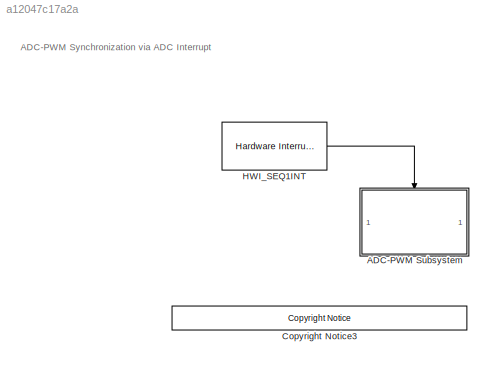
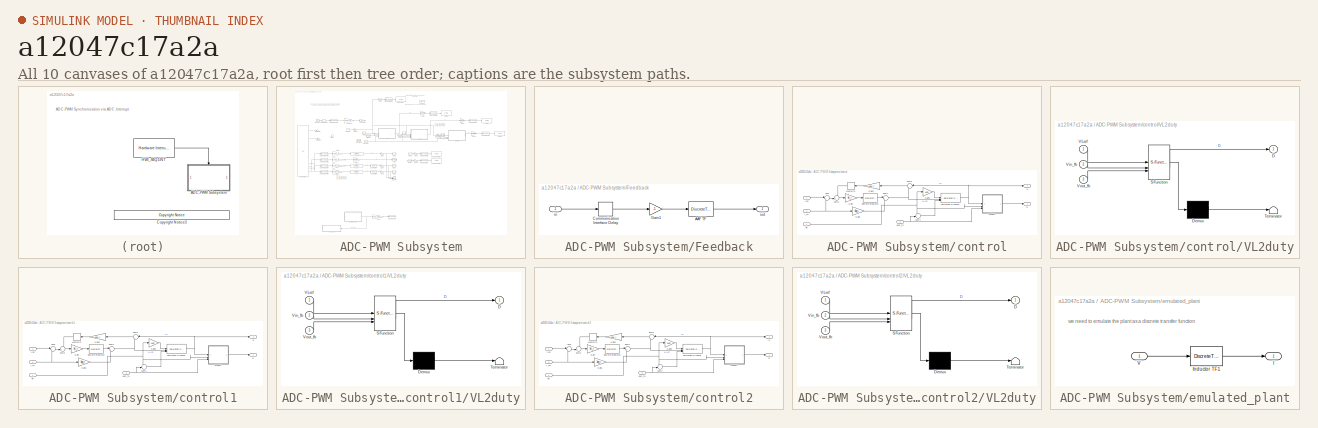
[diagram: thumbnail index - all 10 canvases of the model, root first then tree order]
MODEL slx_a12047c17a2a
KIND model
CONFIG AbsTol = auto
CONFIG EnableMultiTasking = on
CONFIG FixedStep = Tsw
CONFIG MaxStep = auto
CONFIG MinStep = auto
CONFIG RelTol = 1e-3
CONFIG SampleTimeConstraint = Unconstrained
CONFIG SolverName = FixedStepDiscrete
CONFIG StartTime = 0.0
CONFIG StopTime = inf
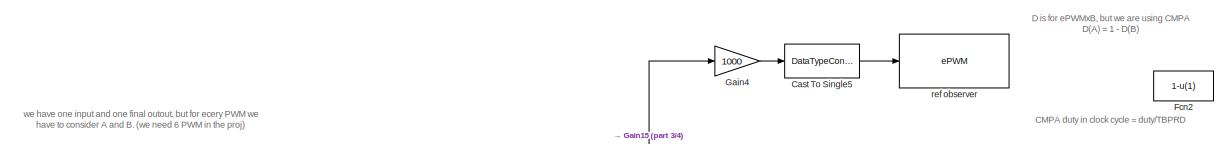
[diagram: ADC-PWM Subsystem - part 1/4, top center region]
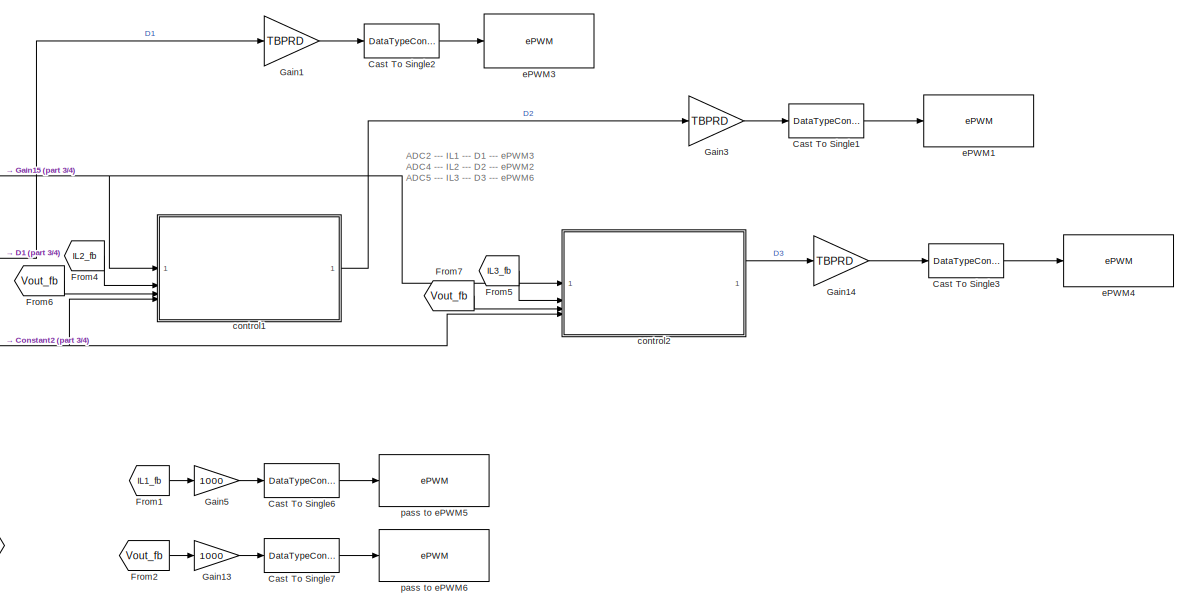
[diagram: ADC-PWM Subsystem - part 2/4, top right region]
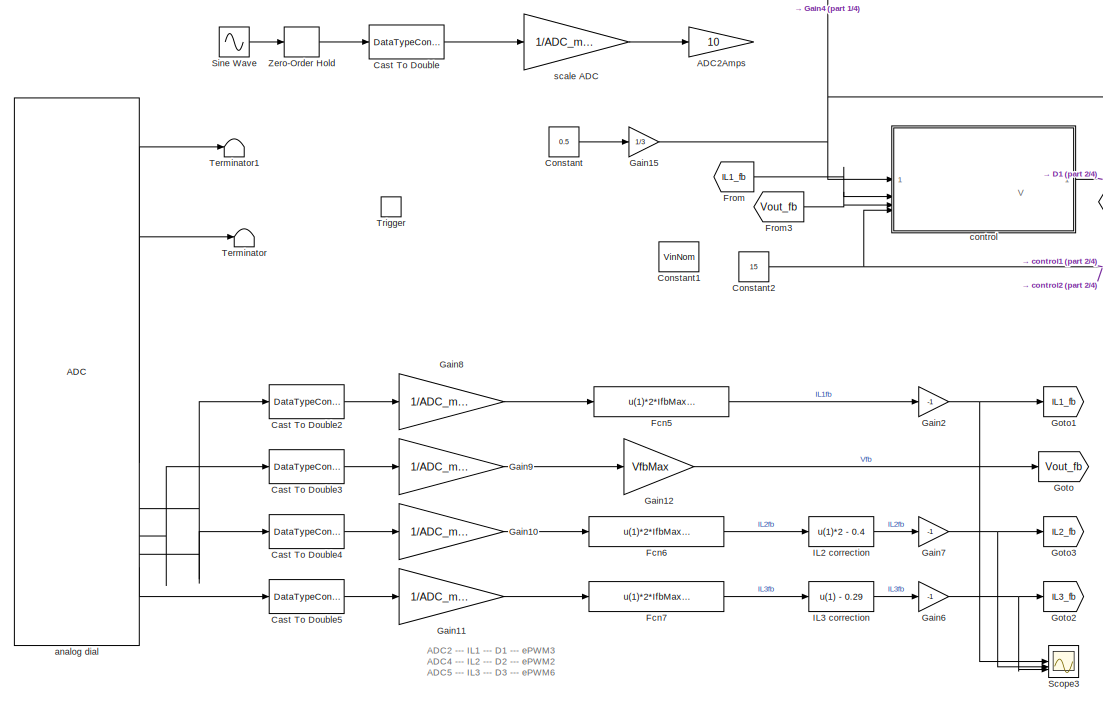
[diagram: ADC-PWM Subsystem - part 3/4, middle left region]
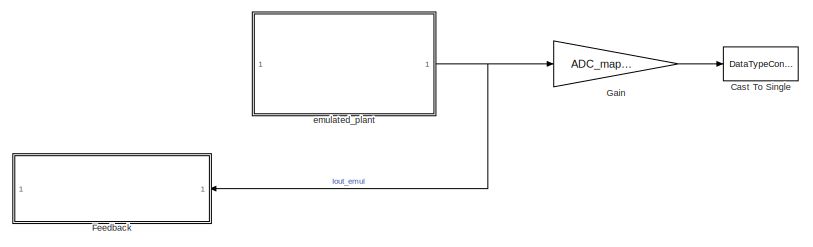
[diagram: ADC-PWM Subsystem - part 4/4, bottom left region]
BLOCK [SubSystem] ADC-PWM Subsystem
  TreatAsAtomicUnit = on
BLOCK [Gain] ADC-PWM Subsystem/ADC2Amps
  Commented = on
  Gain = 10
BLOCK [DataTypeConversion] ADC-PWM Subsystem/Cast To Double
  Commented = on
  OutDataTypeStr = double
  RndMeth = Floor
  SaturateOnIntegerOverflow = off
BLOCK [DataTypeConversion] ADC-PWM Subsystem/Cast To Double2
  OutDataTypeStr = double
  RndMeth = Floor
  SaturateOnIntegerOverflow = off
BLOCK [DataTypeConversion] ADC-PWM Subsystem/Cast To Double3
  OutDataTypeStr = double
  RndMeth = Floor
  SaturateOnIntegerOverflow = off
BLOCK [DataTypeConversion] ADC-PWM Subsystem/Cast To Double4
  OutDataTypeStr = double
  RndMeth = Floor
  SaturateOnIntegerOverflow = off
BLOCK [DataTypeConversion] ADC-PWM Subsystem/Cast To Double5
  OutDataTypeStr = double
  RndMeth = Floor
  SaturateOnIntegerOverflow = off
BLOCK [DataTypeConversion] ADC-PWM Subsystem/Cast To Single
  Commented = on
  OutDataTypeStr = uint16
  RndMeth = Floor
  SaturateOnIntegerOverflow = off
BLOCK [DataTypeConversion] ADC-PWM Subsystem/Cast To Single1
  OutDataTypeStr = uint16
  RndMeth = Floor
  SaturateOnIntegerOverflow = off
BLOCK [DataTypeConversion] ADC-PWM Subsystem/Cast To Single2
  OutDataTypeStr = uint16
  RndMeth = Floor
  SaturateOnIntegerOverflow = off
BLOCK [DataTypeConversion] ADC-PWM Subsystem/Cast To Single3
  OutDataTypeStr = uint16
  RndMeth = Floor
  SaturateOnIntegerOverflow = off
BLOCK [DataTypeConversion] ADC-PWM Subsystem/Cast To Single5
  OutDataTypeStr = uint16
  RndMeth = Floor
  SaturateOnIntegerOverflow = off
BLOCK [DataTypeConversion] ADC-PWM Subsystem/Cast To Single6
  OutDataTypeStr = uint16
  RndMeth = Floor
  SaturateOnIntegerOverflow = off
BLOCK [DataTypeConversion] ADC-PWM Subsystem/Cast To Single7
  OutDataTypeStr = uint16
  RndMeth = Floor
  SaturateOnIntegerOverflow = off
BLOCK [Constant] ADC-PWM Subsystem/Constant
  Value = 0.5
BLOCK [Constant] ADC-PWM Subsystem/Constant1
  Commented = on
  Value = VinNom
BLOCK [Constant] ADC-PWM Subsystem/Constant2
  Value = 15
BLOCK [Fcn] ADC-PWM Subsystem/Fcn2
  Commented = on
  Expr = 1-u(1)
BLOCK [Fcn] ADC-PWM Subsystem/Fcn5
  Expr = u(1)*2*IfbMax - IfbMax
BLOCK [Fcn] ADC-PWM Subsystem/Fcn6
  Expr = u(1)*2*IfbMax - IfbMax
BLOCK [Fcn] ADC-PWM Subsystem/Fcn7
  Expr = u(1)*2*IfbMax - IfbMax
BLOCK [SubSystem] ADC-PWM Subsystem/Feedback
  Commented = on
  NameLocation = top
BLOCK [DiscreteTransferFcn] ADC-PWM Subsystem/Feedback/AAF TF
  Denominator = zden_aaf
  InputPortMap = u0
  Numerator = znum_aaf
BLOCK [Delay] ADC-PWM Subsystem/Feedback/Communication Interface Delay
  InputPortMap = u0
BLOCK [Gain] ADC-PWM Subsystem/Feedback/Gain1
  Gain = -1
BLOCK [Inport] ADC-PWM Subsystem/Feedback/in
BLOCK [Outport] ADC-PWM Subsystem/Feedback/out
BLOCK [From] ADC-PWM Subsystem/From
  GotoTag = IL1_fb
BLOCK [From] ADC-PWM Subsystem/From1
  GotoTag = IL1_fb
BLOCK [From] ADC-PWM Subsystem/From2
  GotoTag = Vout_fb
BLOCK [From] ADC-PWM Subsystem/From3
  GotoTag = Vout_fb
BLOCK [From] ADC-PWM Subsystem/From4
  GotoTag = IL2_fb
BLOCK [From] ADC-PWM Subsystem/From5
  GotoTag = IL3_fb
BLOCK [From] ADC-PWM Subsystem/From6
  GotoTag = Vout_fb
BLOCK [From] ADC-PWM Subsystem/From7
  GotoTag = Vout_fb
BLOCK [Gain] ADC-PWM Subsystem/Gain
  Commented = on
  Gain = ADC_mapping/10
BLOCK [Gain] ADC-PWM Subsystem/Gain1
  Gain = TBPRD
BLOCK [Gain] ADC-PWM Subsystem/Gain10
  Gain = 1/ADC_mapping
BLOCK [Gain] ADC-PWM Subsystem/Gain11
  Gain = 1/ADC_mapping
BLOCK [Gain] ADC-PWM Subsystem/Gain12
  Gain = VfbMax
BLOCK [Gain] ADC-PWM Subsystem/Gain13
  Gain = 1000
BLOCK [Gain] ADC-PWM Subsystem/Gain14
  Gain = TBPRD
BLOCK [Gain] ADC-PWM Subsystem/Gain15
  Gain = 1/3
BLOCK [Gain] ADC-PWM Subsystem/Gain2
  Gain = -1
BLOCK [Gain] ADC-PWM Subsystem/Gain3
  Gain = TBPRD
BLOCK [Gain] ADC-PWM Subsystem/Gain4
  Gain = 1000
BLOCK [Gain] ADC-PWM Subsystem/Gain5
  Gain = 1000
BLOCK [Gain] ADC-PWM Subsystem/Gain6
  Gain = -1
BLOCK [Gain] ADC-PWM Subsystem/Gain7
  Gain = -1
BLOCK [Gain] ADC-PWM Subsystem/Gain8
  Gain = 1/ADC_mapping
BLOCK [Gain] ADC-PWM Subsystem/Gain9
  Gain = 1/ADC_mapping
BLOCK [Goto] ADC-PWM Subsystem/Goto
  GotoTag = Vout_fb
BLOCK [Goto] ADC-PWM Subsystem/Goto1
  GotoTag = IL1_fb
BLOCK [Goto] ADC-PWM Subsystem/Goto2
  GotoTag = IL3_fb
BLOCK [Goto] ADC-PWM Subsystem/Goto3
  GotoTag = IL2_fb
BLOCK [Fcn] ADC-PWM Subsystem/IL2 correction
  Expr = u(1)*2 - 0.4
BLOCK [Fcn] ADC-PWM Subsystem/IL3 correction
  Expr = u(1) - 0.29
BLOCK [Scope] ADC-PWM Subsystem/Scope3
  Floating = off
  NumInputPorts = 3
  ScopeSpecificationString = Simulink.scopes.TimeScopeBlockCfg('CurrentConfiguration', extmgr.ConfigurationSet(extmgr.Configuration('Core','General UI',true),extmgr.Configuration('Core','Source UI',true),extmgr.Configuration('Sources','WiredSimulink',true,'DataLoggingVariableName','ScopeData1'),extmgr.Configuration('Visuals','Time Domain',true,'SerializedDisplays',{struct('MinYLimReal','-10','MaxYLimReal','10','YLabelReal',''...<+1480ch>
BLOCK [Sin] ADC-PWM Subsystem/Sine Wave
  Amplitude = floor(ADC_mapping/2)
  Bias = floor(ADC_mapping/2)
  Commented = on
  Frequency = 2*pi
BLOCK [Terminator] ADC-PWM Subsystem/Terminator
BLOCK [Terminator] ADC-PWM Subsystem/Terminator1
BLOCK [TriggerPort] ADC-PWM Subsystem/Trigger
  PortDimensions = 1
  StatesWhenEnabling = held
  TriggerType = function-call
  VariantControl = (inherit)
BLOCK [ZeroOrderHold] ADC-PWM Subsystem/Zero-Order Hold
  Commented = on
  SampleTime = -1
BLOCK [Reference] ADC-PWM Subsystem/analog dial  REF=c280xlib/ADC
  SourceBlock = c280xlib/ADC
  SourceType = ADC Type 1-2
  UserDataPersistent = on
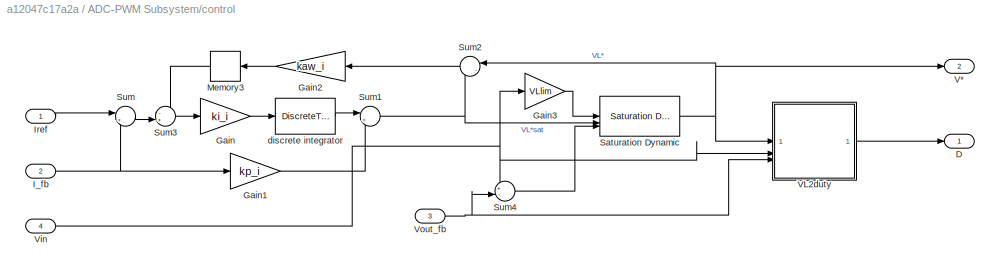
BLOCK [SubSystem] ADC-PWM Subsystem/control
BLOCK [Outport] ADC-PWM Subsystem/control/D
BLOCK [Gain] ADC-PWM Subsystem/control/Gain
  Gain = ki_i
BLOCK [Gain] ADC-PWM Subsystem/control/Gain1
  Gain = kp_i
BLOCK [Gain] ADC-PWM Subsystem/control/Gain2
  Gain = kaw_i
  NameLocation = top
BLOCK [Gain] ADC-PWM Subsystem/control/Gain3
  Gain = VLlim
BLOCK [Inport] ADC-PWM Subsystem/control/I_fb
  Port = 2
BLOCK [Inport] ADC-PWM Subsystem/control/Iref
BLOCK [Memory] ADC-PWM Subsystem/control/Memory3
  InheritSampleTime = on
  NameLocation = top
BLOCK [Reference] ADC-PWM Subsystem/control/Saturation Dynamic  REF=simulink/Discontinuities/Saturation
Dynamic
  SourceBlock = simulink/Discontinuities/Saturation\nDynamic
  SourceType = Saturation Dynamic
BLOCK [Sum] ADC-PWM Subsystem/control/Sum
  Inputs = |+-
BLOCK [Sum] ADC-PWM Subsystem/control/Sum1
  Inputs = |+-
BLOCK [Sum] ADC-PWM Subsystem/control/Sum2
  Inputs = |-+
  NameLocation = top
BLOCK [Sum] ADC-PWM Subsystem/control/Sum3
  Inputs = -+|
BLOCK [Sum] ADC-PWM Subsystem/control/Sum4
  Inputs = +-|
BLOCK [Outport] ADC-PWM Subsystem/control/V*
  Port = 2
BLOCK [SubSystem] ADC-PWM Subsystem/control/VL2duty
  ErrorFcn = Stateflow.Translate.translate
  PermitHierarchicalResolution = ExplicitOnly
  SFBlockType = MATLAB Function
  TreatAsAtomicUnit = on
BLOCK [Demux] ADC-PWM Subsystem/control/VL2duty/ Demux 
  Outputs = 1
BLOCK [S-Function] ADC-PWM Subsystem/control/VL2duty/ SFunction 
  EnableBusSupport = on
  FunctionName = sf_sfun
  PortCounts = [3 2]
  SFcnIsStateOwnerBlock = off
  SFunctionDeploymentMode = off
  Tag = Stateflow S-Function 24
BLOCK [Terminator] ADC-PWM Subsystem/control/VL2duty/ Terminator 
BLOCK [Outport] ADC-PWM Subsystem/control/VL2duty/D
  VectorParamsAs1DForOutWhenUnconnected = off
BLOCK [Inport] ADC-PWM Subsystem/control/VL2duty/VLref
BLOCK [Inport] ADC-PWM Subsystem/control/VL2duty/Vin_fb
  Port = 2
BLOCK [Inport] ADC-PWM Subsystem/control/VL2duty/Vout_fb
  Port = 3
BLOCK [Inport] ADC-PWM Subsystem/control/Vin
  Port = 4
BLOCK [Inport] ADC-PWM Subsystem/control/Vout_fb
  Port = 3
BLOCK [DiscreteTransferFcn] ADC-PWM Subsystem/control/discrete integrator
  Denominator = zden_Integrator
  InputPortMap = u0
  Numerator = znum_Integrator
BLOCK [SubSystem] ADC-PWM Subsystem/control1
BLOCK [Outport] ADC-PWM Subsystem/control1/D
BLOCK [Gain] ADC-PWM Subsystem/control1/Gain
  Gain = ki_i
BLOCK [Gain] ADC-PWM Subsystem/control1/Gain1
  Gain = kp_i
BLOCK [Gain] ADC-PWM Subsystem/control1/Gain2
  Gain = kaw_i
  NameLocation = top
BLOCK [Gain] ADC-PWM Subsystem/control1/Gain3
  Gain = VLlim
BLOCK [Inport] ADC-PWM Subsystem/control1/I_fb
  Port = 2
BLOCK [Inport] ADC-PWM Subsystem/control1/Iref
BLOCK [Memory] ADC-PWM Subsystem/control1/Memory3
  InheritSampleTime = on
  NameLocation = top
BLOCK [Reference] ADC-PWM Subsystem/control1/Saturation Dynamic  REF=simulink/Discontinuities/Saturation
Dynamic
  SourceBlock = simulink/Discontinuities/Saturation\nDynamic
  SourceType = Saturation Dynamic
BLOCK [Sum] ADC-PWM Subsystem/control1/Sum
  Inputs = |+-
BLOCK [Sum] ADC-PWM Subsystem/control1/Sum1
  Inputs = |+-
BLOCK [Sum] ADC-PWM Subsystem/control1/Sum2
  Inputs = |-+
  NameLocation = top
BLOCK [Sum] ADC-PWM Subsystem/control1/Sum3
  Inputs = -+|
BLOCK [Sum] ADC-PWM Subsystem/control1/Sum4
  Inputs = +-|
BLOCK [Outport] ADC-PWM Subsystem/control1/V*
  Port = 2
BLOCK [SubSystem] ADC-PWM Subsystem/control1/VL2duty
  ErrorFcn = Stateflow.Translate.translate
  PermitHierarchicalResolution = ExplicitOnly
  SFBlockType = MATLAB Function
  TreatAsAtomicUnit = on
BLOCK [Demux] ADC-PWM Subsystem/control1/VL2duty/ Demux 
  Outputs = 1
BLOCK [S-Function] ADC-PWM Subsystem/control1/VL2duty/ SFunction 
  EnableBusSupport = on
  FunctionName = sf_sfun
  PortCounts = [3 2]
  SFcnIsStateOwnerBlock = off
  SFunctionDeploymentMode = off
  Tag = Stateflow S-Function 1
BLOCK [Terminator] ADC-PWM Subsystem/control1/VL2duty/ Terminator 
BLOCK [Outport] ADC-PWM Subsystem/control1/VL2duty/D
  VectorParamsAs1DForOutWhenUnconnected = off
BLOCK [Inport] ADC-PWM Subsystem/control1/VL2duty/VLref
BLOCK [Inport] ADC-PWM Subsystem/control1/VL2duty/Vin_fb
  Port = 2
BLOCK [Inport] ADC-PWM Subsystem/control1/VL2duty/Vout_fb
  Port = 3
BLOCK [Inport] ADC-PWM Subsystem/control1/Vin
  Port = 4
BLOCK [Inport] ADC-PWM Subsystem/control1/Vout_fb
  Port = 3
BLOCK [DiscreteTransferFcn] ADC-PWM Subsystem/control1/discrete integrator
  Denominator = zden_Integrator
  InputPortMap = u0
  Numerator = znum_Integrator
BLOCK [SubSystem] ADC-PWM Subsystem/control2
BLOCK [Outport] ADC-PWM Subsystem/control2/D
BLOCK [Gain] ADC-PWM Subsystem/control2/Gain
  Gain = ki_i
BLOCK [Gain] ADC-PWM Subsystem/control2/Gain1
  Gain = kp_i
BLOCK [Gain] ADC-PWM Subsystem/control2/Gain2
  Gain = kaw_i
  NameLocation = top
BLOCK [Gain] ADC-PWM Subsystem/control2/Gain3
  Gain = VLlim
BLOCK [Inport] ADC-PWM Subsystem/control2/I_fb
  Port = 2
BLOCK [Inport] ADC-PWM Subsystem/control2/Iref
BLOCK [Memory] ADC-PWM Subsystem/control2/Memory3
  InheritSampleTime = on
  NameLocation = top
BLOCK [Reference] ADC-PWM Subsystem/control2/Saturation Dynamic  REF=simulink/Discontinuities/Saturation
Dynamic
  SourceBlock = simulink/Discontinuities/Saturation\nDynamic
  SourceType = Saturation Dynamic
BLOCK [Sum] ADC-PWM Subsystem/control2/Sum
  Inputs = |+-
BLOCK [Sum] ADC-PWM Subsystem/control2/Sum1
  Inputs = |+-
BLOCK [Sum] ADC-PWM Subsystem/control2/Sum2
  Inputs = |-+
  NameLocation = top
BLOCK [Sum] ADC-PWM Subsystem/control2/Sum3
  Inputs = -+|
BLOCK [Sum] ADC-PWM Subsystem/control2/Sum4
  Inputs = +-|
BLOCK [Outport] ADC-PWM Subsystem/control2/V*
  Port = 2
BLOCK [SubSystem] ADC-PWM Subsystem/control2/VL2duty
  ErrorFcn = Stateflow.Translate.translate
  PermitHierarchicalResolution = ExplicitOnly
  SFBlockType = MATLAB Function
  TreatAsAtomicUnit = on
BLOCK [Demux] ADC-PWM Subsystem/control2/VL2duty/ Demux 
  Outputs = 1
BLOCK [S-Function] ADC-PWM Subsystem/control2/VL2duty/ SFunction 
  EnableBusSupport = on
  FunctionName = sf_sfun
  PortCounts = [3 2]
  SFcnIsStateOwnerBlock = off
  SFunctionDeploymentMode = off
  Tag = Stateflow S-Function 2
BLOCK [Terminator] ADC-PWM Subsystem/control2/VL2duty/ Terminator 
BLOCK [Outport] ADC-PWM Subsystem/control2/VL2duty/D
  VectorParamsAs1DForOutWhenUnconnected = off
BLOCK [Inport] ADC-PWM Subsystem/control2/VL2duty/VLref
BLOCK [Inport] ADC-PWM Subsystem/control2/VL2duty/Vin_fb
  Port = 2
BLOCK [Inport] ADC-PWM Subsystem/control2/VL2duty/Vout_fb
  Port = 3
BLOCK [Inport] ADC-PWM Subsystem/control2/Vin
  Port = 4
BLOCK [Inport] ADC-PWM Subsystem/control2/Vout_fb
  Port = 3
BLOCK [DiscreteTransferFcn] ADC-PWM Subsystem/control2/discrete integrator
  Denominator = zden_Integrator
  InputPortMap = u0
  Numerator = znum_Integrator
BLOCK [Reference] ADC-PWM Subsystem/ePWM1  REF=c280xlib/ePWM
  SourceBlock = c280xlib/ePWM
  SourceType = ePWM Type 0
  UserDataPersistent = on
BLOCK [Reference] ADC-PWM Subsystem/ePWM3  REF=c280xlib/ePWM
  SourceBlock = c280xlib/ePWM
  SourceType = ePWM Type 0
  UserDataPersistent = on
BLOCK [Reference] ADC-PWM Subsystem/ePWM4  REF=c280xlib/ePWM
  SourceBlock = c280xlib/ePWM
  SourceType = ePWM Type 0
  UserDataPersistent = on
BLOCK [SubSystem] ADC-PWM Subsystem/emulated_plant
  Commented = on
BLOCK [Outport] ADC-PWM Subsystem/emulated_plant/I
BLOCK [DiscreteTransferFcn] ADC-PWM Subsystem/emulated_plant/Inductor TF1
  Denominator = zden_plant_i
  InputPortMap = u0
  Numerator = znum_plant_i
BLOCK [Inport] ADC-PWM Subsystem/emulated_plant/V
BLOCK [Reference] ADC-PWM Subsystem/pass to ePWM5  REF=c280xlib/ePWM
  SourceBlock = c280xlib/ePWM
  SourceType = ePWM Type 0
  UserDataPersistent = on
BLOCK [Reference] ADC-PWM Subsystem/pass to ePWM6  REF=c280xlib/ePWM
  SourceBlock = c280xlib/ePWM
  SourceType = ePWM Type 0
  UserDataPersistent = on
BLOCK [Reference] ADC-PWM Subsystem/ref observer  REF=c280xlib/ePWM
  SourceBlock = c280xlib/ePWM
  SourceType = ePWM Type 0
  UserDataPersistent = on
BLOCK [Gain] ADC-PWM Subsystem/scale ADC
  Commented = on
  Gain = 1/ADC_mapping
BLOCK [Reference] <copyright redacted>
  SourceBlock = demo_controls/<copyright redacted>
  SourceType = <copyright redacted>
BLOCK [Reference] HWI_SEQ1INT  REF=svdschedulerlib/Hardware Interrupt v2
  LibrarySourceBlock = c2000lib/Scheduling/Hardware Interrupt
  SourceBlock = svdschedulerlib/Hardware Interrupt v2
  SourceType = HardwareInterrupt
  UserDataPersistent = on
ANNOTATION (root): ADC-PWM Synchronization via ADC Interrupt
ANNOTATION ADC-PWM Subsystem: ADC2 --- IL1 --- D1 --- ePWM3 ADC4 --- IL2 --- D2 --- ePWM2 ADC5 --- IL3 --- D3 --- ePWM6
ANNOTATION ADC-PWM Subsystem: CMPA duty in clock cycle = duty/TBPRD
ANNOTATION ADC-PWM Subsystem: D is for ePWMxB, but we are using CMPA D(A) = 1 - D(B)
ANNOTATION ADC-PWM Subsystem: V
ANNOTATION ADC-PWM Subsystem: we have one input and one final outout, but for ecery PWM we have to consider A and B. (we need 6 PWM in the proj)
ANNOTATION ADC-PWM Subsystem/emulated_plant: we need to emulate the plant as a discrete transfer function
LINE ADC-PWM Subsystem/Cast To Double2:1 -> ADC-PWM Subsystem/Gain8:1
LINE ADC-PWM Subsystem/Cast To Double3:1 -> ADC-PWM Subsystem/Gain9:1
LINE ADC-PWM Subsystem/Cast To Double4:1 -> ADC-PWM Subsystem/Gain10:1
LINE ADC-PWM Subsystem/Cast To Double5:1 -> ADC-PWM Subsystem/Gain11:1
LINE ADC-PWM Subsystem/Cast To Double:1 -> ADC-PWM Subsystem/scale ADC:1
LINE ADC-PWM Subsystem/Cast To Single1:1 -> ADC-PWM Subsystem/ePWM1:1
LINE ADC-PWM Subsystem/Cast To Single2:1 -> ADC-PWM Subsystem/ePWM3:1
LINE ADC-PWM Subsystem/Cast To Single3:1 -> ADC-PWM Subsystem/ePWM4:1
LINE ADC-PWM Subsystem/Cast To Single5:1 -> ADC-PWM Subsystem/ref observer:1
LINE ADC-PWM Subsystem/Cast To Single6:1 -> ADC-PWM Subsystem/pass to ePWM5:1
LINE ADC-PWM Subsystem/Cast To Single7:1 -> ADC-PWM Subsystem/pass to ePWM6:1
NET ADC-PWM Subsystem/Constant2:1 -> ADC-PWM Subsystem/control1:4, ADC-PWM Subsystem/control2:4, ADC-PWM Subsystem/control:4
LINE ADC-PWM Subsystem/Constant:1 -> ADC-PWM Subsystem/Gain15:1
LINE ADC-PWM Subsystem/Fcn5:1 -> ADC-PWM Subsystem/Gain2:1
LINE ADC-PWM Subsystem/Fcn6:1 -> ADC-PWM Subsystem/IL2 correction:1
LINE ADC-PWM Subsystem/Fcn7:1 -> ADC-PWM Subsystem/IL3 correction:1
LINE ADC-PWM Subsystem/Feedback/AAF TF:1 -> ADC-PWM Subsystem/Feedback/out:1
LINE ADC-PWM Subsystem/Feedback/Communication Interface Delay:1 -> ADC-PWM Subsystem/Feedback/Gain1:1
LINE ADC-PWM Subsystem/Feedback/Gain1:1 -> ADC-PWM Subsystem/Feedback/AAF TF:1
LINE ADC-PWM Subsystem/Feedback/in:1 -> ADC-PWM Subsystem/Feedback/Communication Interface Delay:1
LINE ADC-PWM Subsystem/From1:1 -> ADC-PWM Subsystem/Gain5:1
LINE ADC-PWM Subsystem/From2:1 -> ADC-PWM Subsystem/Gain13:1
LINE ADC-PWM Subsystem/From3:1 -> ADC-PWM Subsystem/control:3
LINE ADC-PWM Subsystem/From4:1 -> ADC-PWM Subsystem/control1:2
LINE ADC-PWM Subsystem/From5:1 -> ADC-PWM Subsystem/control2:2
LINE ADC-PWM Subsystem/From6:1 -> ADC-PWM Subsystem/control1:3
LINE ADC-PWM Subsystem/From7:1 -> ADC-PWM Subsystem/control2:3
LINE ADC-PWM Subsystem/From:1 -> ADC-PWM Subsystem/control:2
LINE ADC-PWM Subsystem/Gain10:1 -> ADC-PWM Subsystem/Fcn6:1
LINE ADC-PWM Subsystem/Gain11:1 -> ADC-PWM Subsystem/Fcn7:1
LINE ADC-PWM Subsystem/Gain12:1 -> ADC-PWM Subsystem/Goto:1
LINE ADC-PWM Subsystem/Gain13:1 -> ADC-PWM Subsystem/Cast To Single7:1
LINE ADC-PWM Subsystem/Gain14:1 -> ADC-PWM Subsystem/Cast To Single3:1
NET ADC-PWM Subsystem/Gain15:1 -> ADC-PWM Subsystem/Gain4:1, ADC-PWM Subsystem/control1:1, ADC-PWM Subsystem/control2:1, ADC-PWM Subsystem/control:1
LINE ADC-PWM Subsystem/Gain1:1 -> ADC-PWM Subsystem/Cast To Single2:1
NET ADC-PWM Subsystem/Gain2:1 -> ADC-PWM Subsystem/Goto1:1, ADC-PWM Subsystem/Scope3:1
LINE ADC-PWM Subsystem/Gain3:1 -> ADC-PWM Subsystem/Cast To Single1:1
LINE ADC-PWM Subsystem/Gain4:1 -> ADC-PWM Subsystem/Cast To Single5:1
LINE ADC-PWM Subsystem/Gain5:1 -> ADC-PWM Subsystem/Cast To Single6:1
NET ADC-PWM Subsystem/Gain6:1 -> ADC-PWM Subsystem/Goto2:1, ADC-PWM Subsystem/Scope3:3
NET ADC-PWM Subsystem/Gain7:1 -> ADC-PWM Subsystem/Goto3:1, ADC-PWM Subsystem/Scope3:2
LINE ADC-PWM Subsystem/Gain8:1 -> ADC-PWM Subsystem/Fcn5:1
LINE ADC-PWM Subsystem/Gain9:1 -> ADC-PWM Subsystem/Gain12:1
LINE ADC-PWM Subsystem/Gain:1 -> ADC-PWM Subsystem/Cast To Single:1
LINE ADC-PWM Subsystem/IL2 correction:1 -> ADC-PWM Subsystem/Gain7:1
LINE ADC-PWM Subsystem/IL3 correction:1 -> ADC-PWM Subsystem/Gain6:1
LINE ADC-PWM Subsystem/Sine Wave:1 -> ADC-PWM Subsystem/Zero-Order Hold:1
LINE ADC-PWM Subsystem/Zero-Order Hold:1 -> ADC-PWM Subsystem/Cast To Double:1
LINE ADC-PWM Subsystem/analog dial:1 -> ADC-PWM Subsystem/Terminator1:1
LINE ADC-PWM Subsystem/analog dial:2 -> ADC-PWM Subsystem/Terminator:1
LINE ADC-PWM Subsystem/analog dial:3 -> ADC-PWM Subsystem/Cast To Double2:1
LINE ADC-PWM Subsystem/analog dial:4 -> ADC-PWM Subsystem/Cast To Double3:1
LINE ADC-PWM Subsystem/analog dial:5 -> ADC-PWM Subsystem/Cast To Double4:1
LINE ADC-PWM Subsystem/analog dial:6 -> ADC-PWM Subsystem/Cast To Double5:1
LINE ADC-PWM Subsystem/control/Gain1:1 -> ADC-PWM Subsystem/control/Sum1:2
LINE ADC-PWM Subsystem/control/Gain2:1 -> ADC-PWM Subsystem/control/Memory3:1
LINE ADC-PWM Subsystem/control/Gain3:1 -> ADC-PWM Subsystem/control/Saturation Dynamic:1
LINE ADC-PWM Subsystem/control/Gain:1 -> ADC-PWM Subsystem/control/discrete integrator:1
NET ADC-PWM Subsystem/control/I_fb:1 -> ADC-PWM Subsystem/control/Gain1:1, ADC-PWM Subsystem/control/Sum:2
LINE ADC-PWM Subsystem/control/Iref:1 -> ADC-PWM Subsystem/control/Sum:1
LINE ADC-PWM Subsystem/control/Memory3:1 -> ADC-PWM Subsystem/control/Sum3:1
NET ADC-PWM Subsystem/control/Saturation Dynamic:1 -> ADC-PWM Subsystem/control/Sum2:1, ADC-PWM Subsystem/control/V*:1, ADC-PWM Subsystem/control/VL2duty:1
NET ADC-PWM Subsystem/control/Sum1:1 -> ADC-PWM Subsystem/control/Saturation Dynamic:2, ADC-PWM Subsystem/control/Sum2:2
LINE ADC-PWM Subsystem/control/Sum2:1 -> ADC-PWM Subsystem/control/Gain2:1
LINE ADC-PWM Subsystem/control/Sum3:1 -> ADC-PWM Subsystem/control/Gain:1
LINE ADC-PWM Subsystem/control/Sum4:1 -> ADC-PWM Subsystem/control/Saturation Dynamic:3
LINE ADC-PWM Subsystem/control/Sum:1 -> ADC-PWM Subsystem/control/Sum3:2
LINE ADC-PWM Subsystem/control/VL2duty:1 -> ADC-PWM Subsystem/control/D:1
NET ADC-PWM Subsystem/control/Vin:1 -> ADC-PWM Subsystem/control/Gain3:1, ADC-PWM Subsystem/control/Sum4:1, ADC-PWM Subsystem/control/VL2duty:2
NET ADC-PWM Subsystem/control/Vout_fb:1 -> ADC-PWM Subsystem/control/Sum4:2, ADC-PWM Subsystem/control/VL2duty:3
LINE ADC-PWM Subsystem/control/discrete integrator:1 -> ADC-PWM Subsystem/control/Sum1:1
LINE ADC-PWM Subsystem/control1/Gain1:1 -> ADC-PWM Subsystem/control1/Sum1:2
LINE ADC-PWM Subsystem/control1/Gain2:1 -> ADC-PWM Subsystem/control1/Memory3:1
LINE ADC-PWM Subsystem/control1/Gain3:1 -> ADC-PWM Subsystem/control1/Saturation Dynamic:1
LINE ADC-PWM Subsystem/control1/Gain:1 -> ADC-PWM Subsystem/control1/discrete integrator:1
NET ADC-PWM Subsystem/control1/I_fb:1 -> ADC-PWM Subsystem/control1/Gain1:1, ADC-PWM Subsystem/control1/Sum:2
LINE ADC-PWM Subsystem/control1/Iref:1 -> ADC-PWM Subsystem/control1/Sum:1
LINE ADC-PWM Subsystem/control1/Memory3:1 -> ADC-PWM Subsystem/control1/Sum3:1
NET ADC-PWM Subsystem/control1/Saturation Dynamic:1 -> ADC-PWM Subsystem/control1/Sum2:1, ADC-PWM Subsystem/control1/V*:1, ADC-PWM Subsystem/control1/VL2duty:1
NET ADC-PWM Subsystem/control1/Sum1:1 -> ADC-PWM Subsystem/control1/Saturation Dynamic:2, ADC-PWM Subsystem/control1/Sum2:2
LINE ADC-PWM Subsystem/control1/Sum2:1 -> ADC-PWM Subsystem/control1/Gain2:1
LINE ADC-PWM Subsystem/control1/Sum3:1 -> ADC-PWM Subsystem/control1/Gain:1
LINE ADC-PWM Subsystem/control1/Sum4:1 -> ADC-PWM Subsystem/control1/Saturation Dynamic:3
LINE ADC-PWM Subsystem/control1/Sum:1 -> ADC-PWM Subsystem/control1/Sum3:2
LINE ADC-PWM Subsystem/control1/VL2duty:1 -> ADC-PWM Subsystem/control1/D:1
NET ADC-PWM Subsystem/control1/Vin:1 -> ADC-PWM Subsystem/control1/Gain3:1, ADC-PWM Subsystem/control1/Sum4:1, ADC-PWM Subsystem/control1/VL2duty:2
NET ADC-PWM Subsystem/control1/Vout_fb:1 -> ADC-PWM Subsystem/control1/Sum4:2, ADC-PWM Subsystem/control1/VL2duty:3
LINE ADC-PWM Subsystem/control1/discrete integrator:1 -> ADC-PWM Subsystem/control1/Sum1:1
LINE ADC-PWM Subsystem/control1:1 -> ADC-PWM Subsystem/Gain3:1
LINE ADC-PWM Subsystem/control2/Gain1:1 -> ADC-PWM Subsystem/control2/Sum1:2
LINE ADC-PWM Subsystem/control2/Gain2:1 -> ADC-PWM Subsystem/control2/Memory3:1
LINE ADC-PWM Subsystem/control2/Gain3:1 -> ADC-PWM Subsystem/control2/Saturation Dynamic:1
LINE ADC-PWM Subsystem/control2/Gain:1 -> ADC-PWM Subsystem/control2/discrete integrator:1
NET ADC-PWM Subsystem/control2/I_fb:1 -> ADC-PWM Subsystem/control2/Gain1:1, ADC-PWM Subsystem/control2/Sum:2
LINE ADC-PWM Subsystem/control2/Iref:1 -> ADC-PWM Subsystem/control2/Sum:1
LINE ADC-PWM Subsystem/control2/Memory3:1 -> ADC-PWM Subsystem/control2/Sum3:1
NET ADC-PWM Subsystem/control2/Saturation Dynamic:1 -> ADC-PWM Subsystem/control2/Sum2:1, ADC-PWM Subsystem/control2/V*:1, ADC-PWM Subsystem/control2/VL2duty:1
NET ADC-PWM Subsystem/control2/Sum1:1 -> ADC-PWM Subsystem/control2/Saturation Dynamic:2, ADC-PWM Subsystem/control2/Sum2:2
LINE ADC-PWM Subsystem/control2/Sum2:1 -> ADC-PWM Subsystem/control2/Gain2:1
LINE ADC-PWM Subsystem/control2/Sum3:1 -> ADC-PWM Subsystem/control2/Gain:1
LINE ADC-PWM Subsystem/control2/Sum4:1 -> ADC-PWM Subsystem/control2/Saturation Dynamic:3
LINE ADC-PWM Subsystem/control2/Sum:1 -> ADC-PWM Subsystem/control2/Sum3:2
LINE ADC-PWM Subsystem/control2/VL2duty:1 -> ADC-PWM Subsystem/control2/D:1
NET ADC-PWM Subsystem/control2/Vin:1 -> ADC-PWM Subsystem/control2/Gain3:1, ADC-PWM Subsystem/control2/Sum4:1, ADC-PWM Subsystem/control2/VL2duty:2
NET ADC-PWM Subsystem/control2/Vout_fb:1 -> ADC-PWM Subsystem/control2/Sum4:2, ADC-PWM Subsystem/control2/VL2duty:3
LINE ADC-PWM Subsystem/control2/discrete integrator:1 -> ADC-PWM Subsystem/control2/Sum1:1
LINE ADC-PWM Subsystem/control2:1 -> ADC-PWM Subsystem/Gain14:1
LINE ADC-PWM Subsystem/control:1 -> ADC-PWM Subsystem/Gain1:1
LINE ADC-PWM Subsystem/emulated_plant/Inductor TF1:1 -> ADC-PWM Subsystem/emulated_plant/I:1
LINE ADC-PWM Subsystem/emulated_plant/V:1 -> ADC-PWM Subsystem/emulated_plant/Inductor TF1:1
NET ADC-PWM Subsystem/emulated_plant:1 -> ADC-PWM Subsystem/Feedback:1, ADC-PWM Subsystem/Gain:1
LINE ADC-PWM Subsystem/scale ADC:1 -> ADC-PWM Subsystem/ADC2Amps:1
LINE HWI_SEQ1INT:1 -> ADC-PWM Subsystem:trigger
note: NET lines group one-source signal fan-out (src -> all destinations, sorted); 1:1 wires keep LINE
CHART ADC-PWM
Subsystem/control2/VL2duty states=1 transitions=1
  STATE_LABEL 'eML_blk_kernel()'
  STATE_LABEL 'SCRIPT:\nfunction D = fcn(VLref,Vin_fb,Vout_fb)\n% Vout = Vin * 1/(1-D) where Vin = Vs-VL\n% Vout/(Vs - VL) = 1/(1-D)\nD = min([1 max([0 (1 + (VLref - Vin_fb)/Vout_fb)])]);\n'
CHART ADC-PWM
Subsystem/control/VL2duty states=1 transitions=1
  STATE_LABEL 'eML_blk_kernel()'
  STATE_LABEL 'SCRIPT:\nfunction D = fcn(VLref,Vin_fb,Vout_fb)\n% Vout = Vin * 1/(1-D) where Vin = Vs-VL\n% Vout/(Vs - VL) = 1/(1-D)\nD = min([1 max([0 (1 + (VLref - Vin_fb)/Vout_fb)])]);\n'
CHART ADC-PWM
Subsystem/control1/VL2duty states=1 transitions=1
  STATE_LABEL 'eML_blk_kernel()'
  STATE_LABEL 'SCRIPT:\nfunction D = fcn(VLref,Vin_fb,Vout_fb)\n% Vout = Vin * 1/(1-D) where Vin = Vs-VL\n% Vout/(Vs - VL) = 1/(1-D)\nD = min([1 max([0 (1 + (VLref - Vin_fb)/Vout_fb)])]);\n'
CHART  states=0 transitions=0
CHART  states=0 transitions=0
CHART  states=0 transitions=0
